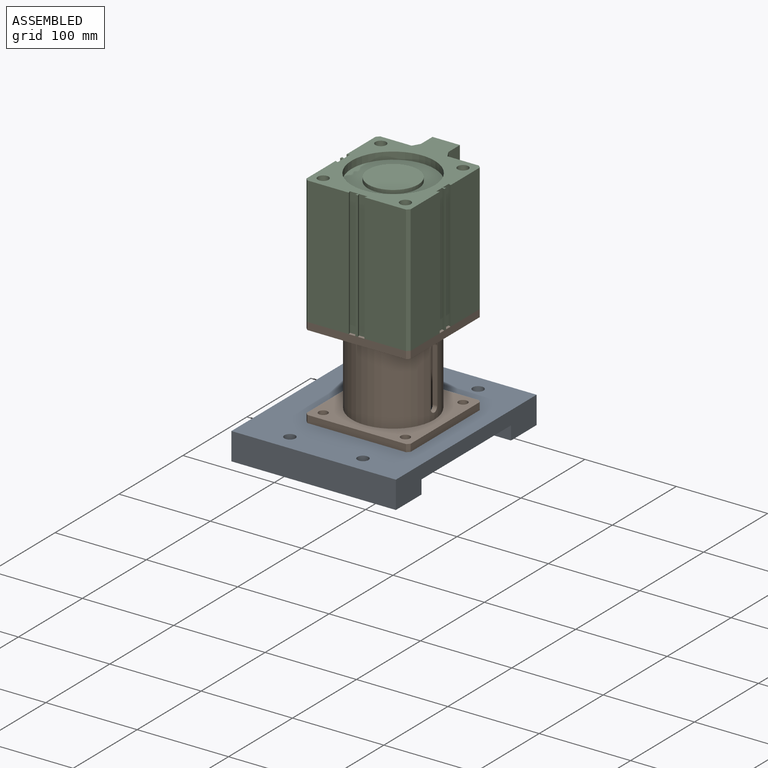
[diagram: assembled view]
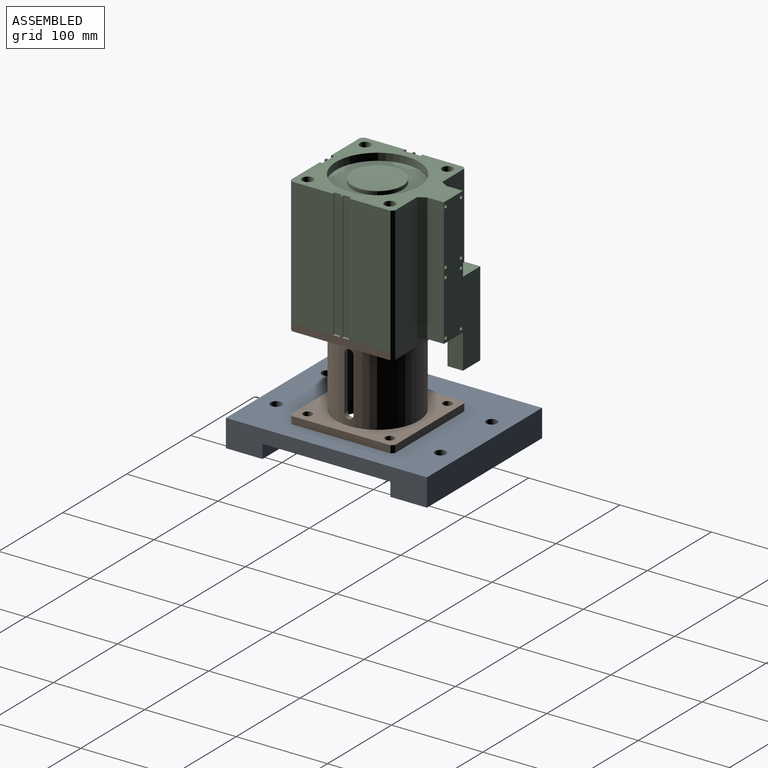
[diagram: assembled view, second angle]
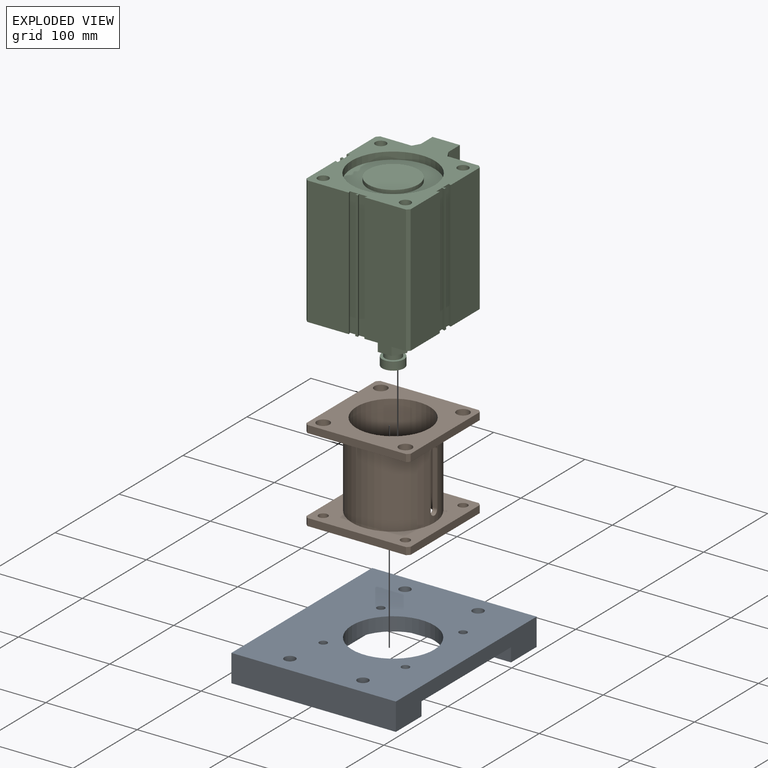
[diagram: exploded view]
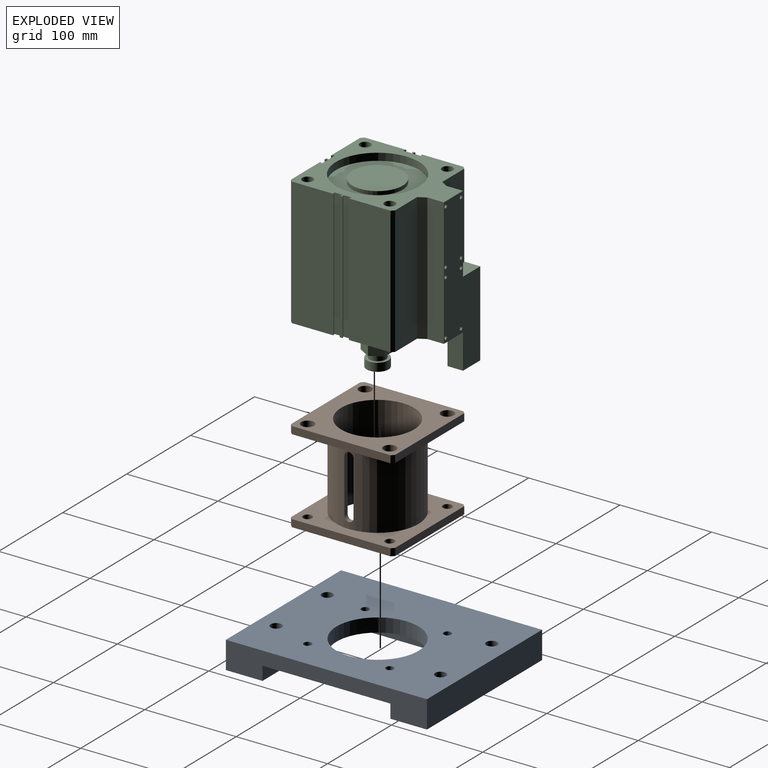
[diagram: exploded view, second angle]
ASSEMBLY  parts=3 mates=2
PART A: 19 faces, bbox 180x220x30 mm
  f0: plane 220x180mm, normal (0,0,1), area 32558.9mm2, adj f2,f3,f4,f5,f6,f10,f11,f12
  f1: plane 140x140mm, normal (0,0,-1), area 13011.3mm2, adj f5,f6,f7,f8,f9,f15,f16,f17
  f2: plane 180x30mm, normal (0,1,0), area 5400mm2, adj f0,f3,f6,f14
  f3: plane 220x30mm, normal (-1,0,0), area 6600mm2, adj f0,f2,f4,f14
  f4: plane 180x30mm, normal (0,-1,0), area 5400mm2, adj f0,f3,f6,f14
  f5: cylinder r=45mm len=90mm, axis (0,0,-1), area 4241.2mm2, adj f0,f1
  f6: plane 220x30mm, normal (1,0,0), area 4500mm2, adj f0,f1,f2,f4,f7,f8,f14
  f7: plane 140x15mm, normal (0,-1,0), area 2100mm2, adj f1,f6,f9,f14
  f8: plane 140x15mm, normal (0,1,0), area 2100mm2, adj f1,f6,f9,f14
  f9: plane 140x15mm, normal (1,0,0), area 2100mm2, adj f1,f7,f8,f14
  f10: cylinder r=6mm len=30mm, axis (0,0,1), area 1131mm2, adj f0,f14
  f11: cylinder r=6mm len=30mm, axis (0,0,1), area 1131mm2, adj f0,f14
  f12: cylinder r=6mm len=30mm, axis (0,0,1), area 1131mm2, adj f0,f14
  f13: cylinder r=6mm len=30mm, axis (0,0,1), area 1131mm2, adj f0,f14
  f14: plane 220x180mm, normal (0,0,-1), area 19547.6mm2, adj f2,f3,f4,f6,f7,f8,f9,f10
  f15: cylinder r=4.25mm len=15mm, axis (0,0,1), area 400.6mm2, adj f0,f1
  f16: cylinder r=4.25mm len=15mm, axis (0,0,1), area 400.6mm2, adj f0,f1
  f17: cylinder r=4.25mm len=15mm, axis (0,0,1), area 400.6mm2, adj f0,f1
  f18: cylinder r=4.25mm len=15mm, axis (0,0,1), area 400.6mm2, adj f0,f1
PART B: 34 faces, bbox 114x114x100 mm
  f0: plane 108x8mm, normal (1,0,0), area 864mm2, adj f1,f2,f3,f4
  f1: plane 8x3mm, normal (0.71,-0.71,0), area 33.9mm2, adj f0,f2,f4,f5
  f2: plane 114x114mm, normal (0,0,-1), area 6000.5mm2, adj f0,f1,f3,f5,f6,f7,f8,f9
  f3: plane 8x3mm, normal (0.71,0.71,0), area 33.9mm2, adj f0,f2,f4,f6
  f4: plane 114x114mm, normal (0,0,1), area 7335.7mm2, adj f0,f1,f3,f5,f6,f7,f8,f9
  f5: plane 108x8mm, normal (0,-1,0), area 864mm2, adj f1,f2,f4,f9
  f6: plane 108x8mm, normal (0,1,0), area 864mm2, adj f2,f3,f4,f7
  f7: plane 8x3mm, normal (-0.71,0.71,0), area 33.9mm2, adj f2,f4,f6,f8
  f8: plane 108x8mm, normal (-1,0,0), area 864mm2, adj f2,f4,f7,f9
  f9: plane 8x3mm, normal (-0.71,-0.71,0), area 33.9mm2, adj f2,f4,f5,f8
  f10: cylinder r=45mm len=90mm, axis (0,0,1), area 23109.1mm2, adj f2,f16,f30,f31,f32,f33
  f11: cylinder r=7mm len=14mm, axis (0,0,1), area 351.9mm2, adj f2,f4
  f12: cylinder r=7mm len=14mm, axis (0,0,1), area 351.9mm2, adj f2,f4
  f13: cylinder r=7mm len=14mm, axis (0,0,1), area 351.9mm2, adj f2,f4
  f14: cylinder r=7mm len=14mm, axis (0,0,1), area 351.9mm2, adj f2,f4
  f15: cylinder r=40mm len=100mm, axis (0,0,1), area 24491.1mm2, adj f4,f17,f30,f31,f32,f33
  f16: plane 114x114mm, normal (0,0,1), area 6302.1mm2, adj f10,f18,f19,f20,f21,f22,f23,f24
  f17: plane 114x114mm, normal (0,0,-1), area 7637.3mm2, adj f15,f18,f19,f20,f21,f22,f23,f24
  f18: plane 108x8mm, normal (1,0,0), area 864mm2, adj f16,f17,f19,f25
  f19: plane 8x3mm, normal (0.71,0.71,0), area 33.9mm2, adj f16,f17,f18,f20
  f20: plane 108x8mm, normal (0,1,0), area 864mm2, adj f16,f17,f19,f21
  f21: plane 8x3mm, normal (-0.71,0.71,0), area 33.9mm2, adj f16,f17,f20,f22
  f22: plane 108x8mm, normal (-1,0,0), area 864mm2, adj f16,f17,f21,f23
  f23: plane 8x3mm, normal (-0.71,-0.71,0), area 33.9mm2, adj f16,f17,f22,f24
  f24: plane 108x8mm, normal (0,-1,0), area 864mm2, adj f16,f17,f23,f25
  f25: plane 8x3mm, normal (0.71,-0.71,0), area 33.9mm2, adj f16,f17,f18,f24
  f26: cylinder r=5mm len=10mm, axis (0,0,1), area 251.3mm2, adj f16,f17
  f27: cylinder r=5mm len=10mm, axis (0,0,1), area 251.3mm2, adj f16,f17
  f28: cylinder r=5mm len=10mm, axis (0,0,1), area 251.3mm2, adj f16,f17
  f29: cylinder r=5mm len=10mm, axis (0,0,1), area 251.3mm2, adj f16,f17
  f30: cylinder r=5mm len=10mm, axis (1,0,0), area 78.8mm2, adj f10,f15,f31,f32
  f31: plane 59x5.04mm, normal (0,-1,0), area 297.1mm2, adj f10,f15,f30,f33
  f32: plane 59x5.04mm, normal (0,1,0), area 297.1mm2, adj f10,f15,f30,f33
  f33: cylinder r=5mm len=10mm, axis (1,0,0), area 78.8mm2, adj f10,f15,f31,f32
PART C: 102 faces, bbox 114x140x190 mm
  f0: cone r=1.73mm half-angle=60deg, axis (0,0,1), area 127mm2, adj f101
  f1: plane 140x114mm, normal (0,0,1), area 6705.4mm2, adj f2,f3,f4,f5,f6,f7,f8,f9
  f2: plane 140x3mm, normal (-1,0,0), area 420mm2, adj f1,f22,f83,f100
  f3: plane 140x45.5mm, normal (-1,0,0), area 6370mm2, adj f1,f4,f22,f98
  f4: plane 140x3mm, normal (-0.71,-0.71,0), area 594mm2, adj f1,f3,f5,f22
  f5: plane 140x45.5mm, normal (0,-1,0), area 6370mm2, adj f1,f4,f22,f97
  f6: plane 140x3mm, normal (0,-1,0), area 420mm2, adj f1,f22,f94,f95
  f7: plane 140x45.5mm, normal (0,-1,0), area 6370mm2, adj f1,f8,f22,f92
  f8: plane 140x3mm, normal (0.71,-0.71,0), area 594mm2, adj f1,f7,f9,f22
  f9: plane 140x45.5mm, normal (1,0,0), area 6370mm2, adj f1,f8,f22,f91
  f10: plane 140x3mm, normal (1,0,0), area 420mm2, adj f1,f22,f88,f89
  f11: plane 140x45.5mm, normal (1,0,0), area 6370mm2, adj f1,f12,f22,f86
  f12: plane 140x3mm, normal (0.71,0.71,0), area 594mm2, adj f1,f11,f13,f22
  f13: plane 140x34.38mm, normal (0,1,0), area 4813.4mm2, adj f1,f12,f14,f22
  f14: plane 140x8mm, normal (0.87,0.5,0), area 1293.3mm2, adj f1,f13,f15,f22
  f15: plane 140x18mm, normal (1,0,0), area 2520mm2, adj f1,f14,f16,f22
  f16: plane 178x57mm, normal (0,1,0), area 6610.5mm2, adj f1,f15,f17,f22,f23,f24,f25,f26
  f17: plane 140x18mm, normal (-1,0,0), area 1585mm2, adj f1,f16,f18,f22,f76,f77
  f18: plane 140x8mm, normal (-0.87,0.5,0), area 1293.3mm2, adj f1,f17,f19,f22
  f19: plane 140x34.38mm, normal (0,1,0), area 4813.4mm2, adj f1,f18,f20,f22
  f20: plane 140x3mm, normal (-0.71,0.71,0), area 594mm2, adj f1,f19,f21,f22
  f21: plane 140x45.5mm, normal (-1,0,0), area 6370mm2, adj f1,f20,f22,f85
  f22: plane 140x114mm, normal (0,0,-1), area 11245.8mm2, adj f2,f3,f4,f5,f6,f7,f8,f9
  f23: plane 27x17mm, normal (0,0,-1), area 459mm2, adj f16,f24,f76,f78
  f24: plane 38x17mm, normal (1,0,0), area 646mm2, adj f16,f22,f23,f76
  f25: cylinder r=2mm len=27mm, axis (0,-1,0), area 339.3mm2, adj f16,f38
  f26: cylinder r=2mm len=27mm, axis (0,-1,0), area 339.3mm2, adj f16,f39
  f27: cylinder r=2mm len=27mm, axis (0,-1,0), area 339.3mm2, adj f16,f40
  f28: cylinder r=2mm len=27mm, axis (0,-1,0), area 339.3mm2, adj f16,f41
  f29: cylinder r=2mm len=27mm, axis (0,-1,0), area 339.3mm2, adj f16,f42
  f30: cylinder r=2mm len=27mm, axis (0,-1,0), area 339.3mm2, adj f16,f43
  f31: cylinder r=2mm len=27mm, axis (0,-1,0), area 339.3mm2, adj f16,f44
  f32: cylinder r=2mm len=27mm, axis (0,-1,0), area 339.3mm2, adj f16,f45
  f33: cylinder r=5.92mm len=40mm, axis (0,0,1), area 1487.2mm2, adj f22,f46
  f34: cylinder r=5.92mm len=40mm, axis (0,0,1), area 1487.2mm2, adj f22,f47
  f35: cylinder r=5.92mm len=40mm, axis (0,0,1), area 1487.2mm2, adj f22,f48
  f36: cylinder r=5.92mm len=40mm, axis (0,0,1), area 1487.2mm2, adj f22,f49
  f37: cylinder r=25mm len=50mm, axis (0,0,1), area 942.5mm2, adj f22,f50
  f38: plane 4x4mm, normal (0,1,0), area 12.6mm2, adj f25
  f39: plane 4x4mm, normal (0,1,0), area 12.6mm2, adj f26
  f40: plane 4x4mm, normal (0,1,0), area 12.6mm2, adj f27
  f41: plane 4x4mm, normal (0,1,0), area 12.6mm2, adj f28
  f42: plane 4x4mm, normal (0,1,0), area 12.6mm2, adj f29
  f43: plane 4x4mm, normal (0,1,0), area 12.6mm2, adj f30
  f44: plane 4x4mm, normal (0,1,0), area 12.6mm2, adj f31
  f45: plane 4x4mm, normal (0,1,0), area 12.6mm2, adj f32
  f46: cone r=1.73mm half-angle=60deg, axis (0,0,-1), area 127mm2, adj f33
  f47: cone r=1.73mm half-angle=60deg, axis (0,0,-1), area 127mm2, adj f34
  f48: cone r=1.73mm half-angle=60deg, axis (0,0,-1), area 127mm2, adj f35
  f49: cone r=1.73mm half-angle=60deg, axis (0,0,-1), area 127mm2, adj f36
  f50: plane 50x50mm, normal (0,0,-1), area 706.9mm2, adj f37,f51
  f51: cylinder r=20mm len=40mm, axis (0,0,1), area 867mm2, adj f50,f52,f53
  f52: plane 40x40mm, normal (0,0,-1), area 804.2mm2, adj f51,f54
  f53: cylinder r=2.07mm len=15mm, axis (-1,0,0), area 194.3mm2, adj f51,f55
  f54: cylinder r=12mm len=24mm, axis (0,0,1), area 226.2mm2, adj f52,f56
  f55: plane 4.13x4.13mm, normal (1,0,0), area 13.4mm2, adj f53
  f56: plane 24x24mm, normal (0,0,-1), area 197.9mm2, adj f54,f57
  f57: cylinder r=9mm len=18mm, axis (0,0,1), area 452.4mm2, adj f56,f75
  f58: cone r=1.73mm half-angle=60deg, axis (0,0,1), area 127mm2, adj f82
  f59: cone r=1.73mm half-angle=60deg, axis (0,0,1), area 127mm2, adj f81
  f60: cone r=1.73mm half-angle=60deg, axis (0,0,1), area 127mm2, adj f80
  f61: plane 55x55mm, normal (0,0,1), area 2375.8mm2, adj f67
  f62: plane 24x24mm, normal (0,0,1), area 197.9mm2, adj f63,f65
  f63: cylinder r=12mm len=24mm, axis (0,0,1), area 678.6mm2, adj f62,f64
  f64: plane 24x24mm, normal (0,0,-1), area 452.4mm2, adj f63
  f65: cylinder r=9mm len=18mm, axis (0,0,1), area 395.8mm2, adj f62,f66
  f66: plane 30.47x26.39mm, normal (0,0,-1), area 348.5mm2, adj f65,f68,f69,f70,f71,f72,f73
  f67: cylinder r=27.5mm len=55mm, axis (0,0,1), area 691.2mm2, adj f61,f74
  f68: plane 13.19x10mm, normal (0.87,-0.5,0), area 152.3mm2, adj f66,f69,f73,f75
  f69: plane 13.19x10mm, normal (0.87,0.5,0), area 152.3mm2, adj f66,f68,f70,f75
  f70: plane 15.23x10mm, normal (0,1,0), area 152.3mm2, adj f66,f69,f71,f75
  f71: plane 13.19x10mm, normal (-0.87,0.5,0), area 152.3mm2, adj f66,f70,f72,f75
  f72: plane 13.19x10mm, normal (-0.87,-0.5,0), area 152.3mm2, adj f66,f71,f73,f75
  f73: plane 15.23x10mm, normal (0,-1,0), area 152.3mm2, adj f66,f68,f72,f75
  f74: plane 91x91mm, normal (0,0,1), area 4128.1mm2, adj f67,f79
  f75: plane 30.47x26.39mm, normal (0,0,1), area 348.5mm2, adj f57,f68,f69,f70,f71,f72,f73
  f76: plane 93x27mm, normal (0,-1,0), area 2511mm2, adj f17,f23,f24,f77,f78
  f77: plane 27x17mm, normal (0,0,1), area 459mm2, adj f16,f17,f76,f78
  f78: plane 93x17mm, normal (-1,0,0), area 1581mm2, adj f16,f23,f76,f77
  f79: cylinder r=45.5mm len=91mm, axis (0,0,1), area 2287.1mm2, adj f1,f74
  f80: cylinder r=5.92mm len=40mm, axis (0,0,-1), area 1487.2mm2, adj f1,f60
  f81: cylinder r=5.92mm len=40mm, axis (0,0,-1), area 1487.2mm2, adj f1,f59
  f82: cylinder r=5.92mm len=40mm, axis (0,0,-1), area 1487.2mm2, adj f1,f58
  f83: plane 140x3mm, normal (0.34,0.94,0), area 447mm2, adj f1,f2,f22,f84
  f84: plane 140x9.18mm, normal (-1,0,0), area 1285.7mm2, adj f1,f22,f83,f85
  f85: plane 140x3mm, normal (0.34,-0.94,0), area 447mm2, adj f1,f21,f22,f84
  f86: plane 140x3mm, normal (-0.34,-0.94,0), area 447mm2, adj f1,f11,f22,f87
  f87: plane 140x9.18mm, normal (1,0,0), area 1285.7mm2, adj f1,f22,f86,f88
  f88: plane 140x3mm, normal (-0.34,0.94,0), area 447mm2, adj f1,f10,f22,f87
  f89: plane 140x3mm, normal (-0.34,-0.94,0), area 447mm2, adj f1,f10,f22,f90
  f90: plane 140x9.18mm, normal (1,0,0), area 1285.7mm2, adj f1,f22,f89,f91
  f91: plane 140x3mm, normal (-0.34,0.94,0), area 447mm2, adj f1,f9,f22,f90
  f92: plane 140x3mm, normal (-0.94,0.34,0), area 447mm2, adj f1,f7,f22,f93
  f93: plane 140x9.18mm, normal (0,-1,0), area 1285.7mm2, adj f1,f22,f92,f94
  f94: plane 140x3mm, normal (0.94,0.34,0), area 447mm2, adj f1,f6,f22,f93
  f95: plane 140x3mm, normal (-0.94,0.34,0), area 447mm2, adj f1,f6,f22,f96
  f96: plane 140x9.18mm, normal (0,-1,0), area 1285.7mm2, adj f1,f22,f95,f97
  f97: plane 140x3mm, normal (0.94,0.34,0), area 447mm2, adj f1,f5,f22,f96
  f98: plane 140x3mm, normal (0.34,0.94,0), area 447mm2, adj f1,f3,f22,f99
  f99: plane 140x9.18mm, normal (-1,0,0), area 1285.7mm2, adj f1,f22,f98,f100
  f100: plane 140x3mm, normal (0.34,-0.94,0), area 447mm2, adj f1,f2,f22,f99
  f101: cylinder r=5.92mm len=40mm, axis (0,0,-1), area 1487.2mm2, adj f0,f1
PLACE A t=(-80,28.81,-3)mm
PLACE B t=(-80,28.81,12)mm fixed
PLACE C t=(-80,28.81,12)mm
MATE fastened B.f14 <-> C.f34  axis (0,0,1) through (-35,-16.19,112)mm
MATE fastened A.f18 <-> B.f12  axis (0,0,1) through (-125,73.81,12)mm
